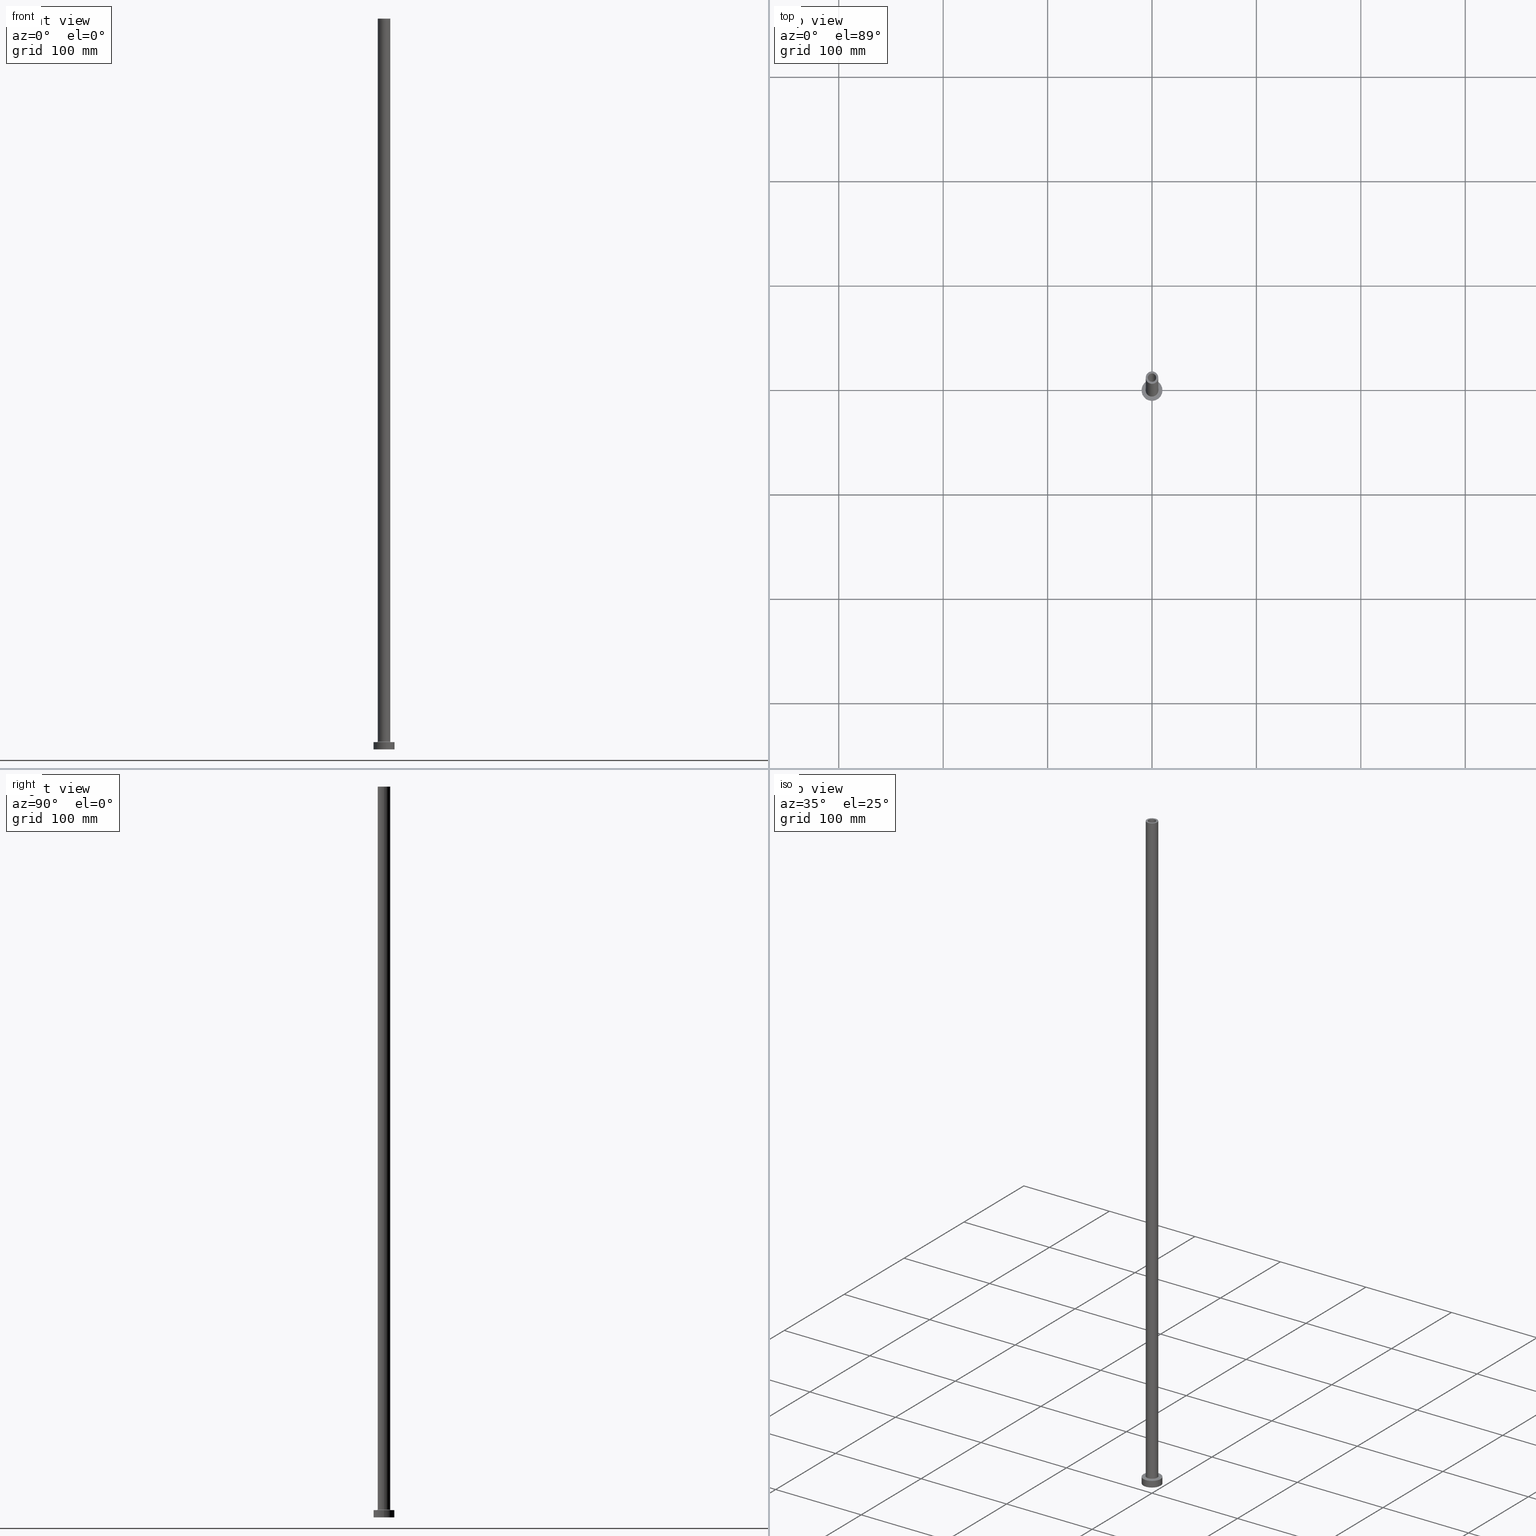
[diagram: canonical four-view strip — front | top / right | iso, engineering-drawing reading convention]
A machine part, canonical four-view strip (front | top / right | iso — engineering-drawing reading convention). The complete STEP part file that produces these views, byte-faithful:
ISO-10303-21;
HEADER;
FILE_DESCRIPTION (( 'STEP AP203' ),
    '1' );
FILE_NAME ('4488.STEP',
    '2023-02-13T12:42:28',
    ( '' ),
    ( '' ),
    'SwSTEP 2.0',
    'SolidWorks 2019',
    '' );
FILE_SCHEMA (( 'CONFIG_CONTROL_DESIGN' ));
ENDSEC;

DATA;
#1 = DIRECTION ( 'NONE',  ( 1.000000000000000000, 0.000000000000000000, 0.000000000000000000 ) ) ;
#2 = ORIENTED_EDGE ( 'NONE', *, *, #297, .T. ) ;
#3 = CARTESIAN_POINT ( 'NONE',  ( 0.000000000000000000, 0.000000000000000000, 7.700000000000040146 ) ) ;
#4 = ADVANCED_FACE ( 'NONE', ( #446, #378 ), #441, .F. ) ;
#5 = ORIENTED_EDGE ( 'NONE', *, *, #283, .F. ) ;
#6 = CALENDAR_DATE ( 2023, 13, 2 ) ;
#7 = ORIENTED_EDGE ( 'NONE', *, *, #365, .T. ) ;
#8 = DATE_AND_TIME ( #318, #333 ) ;
#9 = MECHANICAL_CONTEXT ( 'NONE', #362, 'mechanical' ) ;
#10 = LINE ( 'NONE', #39, #45 ) ;
#11 = CC_DESIGN_DATE_AND_TIME_ASSIGNMENT ( #35, #148, ( #332 ) ) ;
#12 = DIRECTION ( 'NONE',  ( -1.000000000000000000, 0.000000000000000000, 0.000000000000000000 ) ) ;
#13 = VERTEX_POINT ( 'NONE', #20 ) ;
#14 = DIRECTION ( 'NONE',  ( 1.000000000000000000, 0.000000000000000000, -0.000000000000000000 ) ) ;
#15 = CC_DESIGN_APPROVAL ( #428, ( #37 ) ) ;
#16 = CARTESIAN_POINT ( 'NONE',  ( 0.000000000000000000, 0.000000000000000000, 0.000000000000000000 ) ) ;
#17 = VERTEX_POINT ( 'NONE', #375 ) ;
#18 = EDGE_LOOP ( 'NONE', ( #58, #172 ) ) ;
#19 = DIRECTION ( 'NONE',  ( 0.000000000000000000, 0.000000000000000000, 1.000000000000000000 ) ) ;
#20 = CARTESIAN_POINT ( 'NONE',  ( 10.00000000000000000, 1.224646799147353256E-15, 7.000000000000000000 ) ) ;
#21 = AXIS2_PLACEMENT_3D ( 'NONE', #140, #306, #347 ) ;
#22 = AXIS2_PLACEMENT_3D ( 'NONE', #103, #445, #29 ) ;
#23 = EDGE_LOOP ( 'NONE', ( #317, #44, #7, #84 ) ) ;
#24 = CC_DESIGN_PERSON_AND_ORGANIZATION_ASSIGNMENT ( #311, #74, ( #332 ) ) ;
#25 = DIRECTION ( 'NONE',  ( 1.000000000000000000, 0.000000000000000000, 0.000000000000000000 ) ) ;
#26 = CIRCLE ( 'NONE', #87, 6.700000000000001066 ) ;
#27 = CYLINDRICAL_SURFACE ( 'NONE', #193, 6.000000000000000888 ) ;
#28 = CARTESIAN_POINT ( 'NONE',  ( 6.000000000000000888, 7.347880794884120722E-16, 700.0000000000000000 ) ) ;
#29 = DIRECTION ( 'NONE',  ( 0.000000000000000000, 0.000000000000000000, -1.000000000000000000 ) ) ;
#30 = AXIS2_PLACEMENT_3D ( 'NONE', #242, #65, #272 ) ;
#31 = LINE ( 'NONE', #458, #106 ) ;
#32 = FACE_BOUND ( 'NONE', #430, .T. ) ;
#33 = EDGE_CURVE ( 'NONE', #395, #423, #130, .T. ) ;
#34 = LINE ( 'NONE', #28, #425 ) ;
#35 = DATE_AND_TIME ( #6, #236 ) ;
#36 = CARTESIAN_POINT ( 'NONE',  ( 0.000000000000000000, 0.000000000000000000, 700.0000000000000000 ) ) ;
#37 = PRODUCT_DEFINITION_FORMATION_WITH_SPECIFIED_SOURCE ( 'LIBOVOLN�', '', #261, .NOT_KNOWN. ) ;
#38 = APPROVAL ( #357, 'NEUR�EN�' ) ;
#39 = CARTESIAN_POINT ( 'NONE',  ( 10.00000000000000000, 1.224646799147353256E-15, 7.000000000000000000 ) ) ;
#40 = ORIENTED_EDGE ( 'NONE', *, *, #191, .T. ) ;
#41 = CIRCLE ( 'NONE', #57, 6.000000000000000888 ) ;
#42 = ORIENTED_EDGE ( 'NONE', *, *, #54, .F. ) ;
#43 = DATE_AND_TIME ( #117, #107 ) ;
#44 = ORIENTED_EDGE ( 'NONE', *, *, #396, .T. ) ;
#45 = VECTOR ( 'NONE', #209, 1000.000000000000000 ) ;
#46 = AXIS2_PLACEMENT_3D ( 'NONE', #129, #226, #94 ) ;
#47 = SECURITY_CLASSIFICATION_LEVEL ( 'unclassified' ) ;
#48 = PRODUCT_DEFINITION_SHAPE ( 'NONE', 'NONE',  #332 ) ;
#49 = CARTESIAN_POINT ( 'NONE',  ( 0.000000000000000000, 0.000000000000000000, 0.000000000000000000 ) ) ;
#50 = ORIENTED_EDGE ( 'NONE', *, *, #297, .F. ) ;
#51 = ORIENTED_EDGE ( 'NONE', *, *, #411, .T. ) ;
#52 = DIRECTION ( 'NONE',  ( 0.000000000000000000, 0.000000000000000000, 1.000000000000000000 ) ) ;
#53 = AXIS2_PLACEMENT_3D ( 'NONE', #374, #52, #264 ) ;
#54 = EDGE_CURVE ( 'NONE', #145, #253, #360, .T. ) ;
#55 = DIRECTION ( 'NONE',  ( 1.000000000000000000, 0.000000000000000000, 0.000000000000000000 ) ) ;
#56 = ORIENTED_EDGE ( 'NONE', *, *, #168, .T. ) ;
#57 = AXIS2_PLACEMENT_3D ( 'NONE', #343, #139, #204 ) ;
#58 = ORIENTED_EDGE ( 'NONE', *, *, #380, .T. ) ;
#59 = DIRECTION ( 'NONE',  ( 0.000000000000000000, 0.000000000000000000, 1.000000000000000000 ) ) ;
#60 = MANIFOLD_SOLID_BREP ( 'Odebrat vysunut�m4', #447 ) ;
#61 = DIRECTION ( 'NONE',  ( 0.000000000000000000, 0.000000000000000000, 1.000000000000000000 ) ) ;
#62 = APPROVAL ( #434, 'NEUR�EN�' ) ;
#63 = AXIS2_PLACEMENT_3D ( 'NONE', #36, #189, #426 ) ;
#64 = DIRECTION ( 'NONE',  ( 1.000000000000000000, 0.000000000000000000, 0.000000000000000000 ) ) ;
#65 = DIRECTION ( 'NONE',  ( 0.000000000000000000, 0.000000000000000000, 1.000000000000000000 ) ) ;
#66 = CARTESIAN_POINT ( 'NONE',  ( -6.000000000000000888, 0.000000000000000000, 700.0000000000000000 ) ) ;
#67 = FACE_OUTER_BOUND ( 'NONE', #322, .T. ) ;
#68 = DIRECTION ( 'NONE',  ( -1.000000000000000000, 0.000000000000000000, 0.000000000000000000 ) ) ;
#69 = AXIS2_PLACEMENT_3D ( 'NONE', #305, #104, #239 ) ;
#70 = DIRECTION ( 'NONE',  ( -0.000000000000000000, -0.000000000000000000, -1.000000000000000000 ) ) ;
#71 = ORIENTED_EDGE ( 'NONE', *, *, #315, .F. ) ;
#72 = CARTESIAN_POINT ( 'NONE',  ( 6.700000000000001066, 0.000000000000000000, 7.000000000000020428 ) ) ;
#73 = DIRECTION ( 'NONE',  ( 0.000000000000000000, 0.000000000000000000, -1.000000000000000000 ) ) ;
#74 = PERSON_AND_ORGANIZATION_ROLE ( 'creator' ) ;
#75 = CC_DESIGN_PERSON_AND_ORGANIZATION_ASSIGNMENT ( #81, #154, ( #275 ) ) ;
#76 = LINE ( 'NONE', #252, #442 ) ;
#77 = AXIS2_PLACEMENT_3D ( 'NONE', #165, #302, #99 ) ;
#78 = EDGE_LOOP ( 'NONE', ( #95, #366, #310, #51 ) ) ;
#79 = DIRECTION ( 'NONE',  ( 0.000000000000000000, 0.000000000000000000, 1.000000000000000000 ) ) ;
#80 = VERTEX_POINT ( 'NONE', #336 ) ;
#81 = PERSON_AND_ORGANIZATION ( #114, #85 ) ;
#82 = CARTESIAN_POINT ( 'NONE',  ( -4.000000000000000000, 0.000000000000000000, 654.9999999999998863 ) ) ;
#83 = EDGE_LOOP ( 'NONE', ( #355, #228, #190, #263 ) ) ;
#84 = ORIENTED_EDGE ( 'NONE', *, *, #404, .F. ) ;
#85 = ORGANIZATION ( 'NEUR�EN�', 'NEUR�EN�', '' ) ;
#86 =( GEOMETRIC_REPRESENTATION_CONTEXT ( 3 ) GLOBAL_UNCERTAINTY_ASSIGNED_CONTEXT ( ( #118 ) ) GLOBAL_UNIT_ASSIGNED_CONTEXT ( ( #203, #454, #452 ) ) REPRESENTATION_CONTEXT ( 'NONE', 'WORKASPACE' ) );
#87 = AXIS2_PLACEMENT_3D ( 'NONE', #388, #174, #100 ) ;
#88 = DIRECTION ( 'NONE',  ( 1.000000000000000000, 0.000000000000000000, 0.000000000000000000 ) ) ;
#89 = ORIENTED_EDGE ( 'NONE', *, *, #271, .T. ) ;
#90 = CC_DESIGN_PERSON_AND_ORGANIZATION_ASSIGNMENT ( #314, #293, ( #37 ) ) ;
#91 = DIRECTION ( 'NONE',  ( 0.000000000000000000, 0.000000000000000000, 1.000000000000000000 ) ) ;
#92 = DIRECTION ( 'NONE',  ( 1.000000000000000000, 0.000000000000000000, 0.000000000000000000 ) ) ;
#93 = VECTOR ( 'NONE', #339, 1000.000000000000000 ) ;
#94 = DIRECTION ( 'NONE',  ( 1.000000000000000000, 0.000000000000000000, 0.000000000000000000 ) ) ;
#95 = ORIENTED_EDGE ( 'NONE', *, *, #163, .F. ) ;
#96 = CARTESIAN_POINT ( 'NONE',  ( 0.000000000000000000, 0.000000000000000000, 7.000000000000000000 ) ) ;
#97 = CC_DESIGN_PERSON_AND_ORGANIZATION_ASSIGNMENT ( #254, #215, ( #261 ) ) ;
#98 = CARTESIAN_POINT ( 'NONE',  ( 0.000000000000000000, 0.000000000000000000, 7.700000000000040146 ) ) ;
#99 = DIRECTION ( 'NONE',  ( 1.000000000000000000, 0.000000000000000000, 0.000000000000000000 ) ) ;
#100 = DIRECTION ( 'NONE',  ( 1.000000000000000000, 0.000000000000000000, 0.000000000000000000 ) ) ;
#101 = AXIS2_PLACEMENT_3D ( 'NONE', #96, #197, #436 ) ;
#102 = LINE ( 'NONE', #384, #308 ) ;
#103 = CARTESIAN_POINT ( 'NONE',  ( 6.700000000000001066, 0.000000000000000000, 7.700000000000040146 ) ) ;
#104 = DIRECTION ( 'NONE',  ( 0.000000000000000000, 0.000000000000000000, -1.000000000000000000 ) ) ;
#105 = CARTESIAN_POINT ( 'NONE',  ( 0.000000000000000000, 0.000000000000000000, 7.000000000000000000 ) ) ;
#106 = VECTOR ( 'NONE', #345, 1000.000000000000000 ) ;
#107 = LOCAL_TIME ( 13, 42, 28.00000000000000000, #286 ) ;
#108 = DIRECTION ( 'NONE',  ( 0.000000000000000000, 0.000000000000000000, 1.000000000000000000 ) ) ;
#109 = ORIENTED_EDGE ( 'NONE', *, *, #138, .T. ) ;
#110 = DATE_AND_TIME ( #351, #459 ) ;
#111 = EDGE_CURVE ( 'NONE', #13, #395, #245, .T. ) ;
#112 = EDGE_LOOP ( 'NONE', ( #50, #260 ) ) ;
#113 = CALENDAR_DATE ( 2023, 13, 2 ) ;
#114 = PERSON ( 'NEUR�EN�', 'NEUR�EN�', 'NEUR�EN�', ('NEUR�EN�'), ('NEUR�EN�'), ('NEUR�EN�') ) ;
#115 = ORIENTED_EDGE ( 'NONE', *, *, #353, .T. ) ;
#116 = CARTESIAN_POINT ( 'NONE',  ( -6.000000000000000888, 0.000000000000000000, 7.700000000000040146 ) ) ;
#117 = CALENDAR_DATE ( 2023, 13, 2 ) ;
#118 = UNCERTAINTY_MEASURE_WITH_UNIT (LENGTH_MEASURE( 1.000000000000000082E-05 ), #203, 'distance_accuracy_value', 'NONE');
#119 = ORIENTED_EDGE ( 'NONE', *, *, #156, .T. ) ;
#120 = CIRCLE ( 'NONE', #379, 0.7000000000000000666 ) ;
#121 = ADVANCED_FACE ( 'NONE', ( #387 ), #417, .F. ) ;
#122 = CYLINDRICAL_SURFACE ( 'NONE', #63, 6.000000000000000888 ) ;
#123 = ORIENTED_EDGE ( 'NONE', *, *, #278, .T. ) ;
#124 = CYLINDRICAL_SURFACE ( 'NONE', #408, 4.000000000000000000 ) ;
#125 = TOROIDAL_SURFACE ( 'NONE', #30, 6.700000000000001066, 0.6999999999999999556 ) ;
#126 = DIRECTION ( 'NONE',  ( 0.000000000000000000, 0.000000000000000000, 1.000000000000000000 ) ) ;
#127 = EDGE_CURVE ( 'NONE', #195, #290, #303, .T. ) ;
#128 = ORIENTED_EDGE ( 'NONE', *, *, #127, .T. ) ;
#129 = CARTESIAN_POINT ( 'NONE',  ( 0.000000000000000000, 0.000000000000000000, 700.0000000000000000 ) ) ;
#130 = LINE ( 'NONE', #161, #269 ) ;
#131 = CARTESIAN_POINT ( 'NONE',  ( -10.00000000000000000, 0.000000000000000000, 7.000000000000000000 ) ) ;
#132 = DIRECTION ( 'NONE',  ( 0.000000000000000000, 0.000000000000000000, 1.000000000000000000 ) ) ;
#133 = DIRECTION ( 'NONE',  ( -0.000000000000000000, -0.000000000000000000, -1.000000000000000000 ) ) ;
#134 = DIRECTION ( 'NONE',  ( 0.000000000000000000, 0.000000000000000000, 1.000000000000000000 ) ) ;
#135 = APPROVAL_PERSON_ORGANIZATION ( #249, #62, #370 ) ;
#136 = CARTESIAN_POINT ( 'NONE',  ( -4.150000000000000355, 0.000000000000000000, 0.000000000000000000 ) ) ;
#137 = CYLINDRICAL_SURFACE ( 'NONE', #69, 4.150000000000000355 ) ;
#138 = EDGE_CURVE ( 'NONE', #225, #80, #41, .T. ) ;
#139 = DIRECTION ( 'NONE',  ( 0.000000000000000000, 0.000000000000000000, 1.000000000000000000 ) ) ;
#140 = CARTESIAN_POINT ( 'NONE',  ( 0.000000000000000000, 0.000000000000000000, 700.0000000000000000 ) ) ;
#141 = EDGE_CURVE ( 'NONE', #223, #267, #102, .T. ) ;
#142 = CIRCLE ( 'NONE', #300, 4.150000000000000355 ) ;
#143 = DIRECTION ( 'NONE',  ( 0.000000000000000000, 0.000000000000000000, 1.000000000000000000 ) ) ;
#144 = EDGE_LOOP ( 'NONE', ( #71, #150 ) ) ;
#145 = VERTEX_POINT ( 'NONE', #352 ) ;
#146 = PERSON_AND_ORGANIZATION_ROLE ( 'creator' ) ;
#147 = EDGE_LOOP ( 'NONE', ( #198, #128, #40, #2 ) ) ;
#148 = DATE_TIME_ROLE ( 'creation_date' ) ;
#149 = CIRCLE ( 'NONE', #274, 4.000000000000000000 ) ;
#150 = ORIENTED_EDGE ( 'NONE', *, *, #271, .F. ) ;
#151 = DATE_TIME_ROLE ( 'classification_date' ) ;
#152 = CARTESIAN_POINT ( 'NONE',  ( -4.150000000000000355, 0.000000000000000000, 654.9999999999998863 ) ) ;
#153 = ORIENTED_EDGE ( 'NONE', *, *, #33, .T. ) ;
#154 = PERSON_AND_ORGANIZATION_ROLE ( 'classification_officer' ) ;
#155 = EDGE_LOOP ( 'NONE', ( #56, #207 ) ) ;
#156 = EDGE_CURVE ( 'NONE', #253, #390, #120, .T. ) ;
#157 = FACE_BOUND ( 'NONE', #155, .T. ) ;
#158 = AXIS2_PLACEMENT_3D ( 'NONE', #16, #19, #55 ) ;
#159 = EDGE_LOOP ( 'NONE', ( #115, #123, #183, #328 ) ) ;
#160 = EDGE_LOOP ( 'NONE', ( #292, #320, #89, #180 ) ) ;
#161 = CARTESIAN_POINT ( 'NONE',  ( -10.00000000000000000, 0.000000000000000000, 7.000000000000000000 ) ) ;
#162 = CIRCLE ( 'NONE', #186, 10.00000000000000000 ) ;
#163 = EDGE_CURVE ( 'NONE', #80, #145, #34, .T. ) ;
#164 = CIRCLE ( 'NONE', #356, 4.150000000000000355 ) ;
#165 = CARTESIAN_POINT ( 'NONE',  ( 0.000000000000000000, 0.000000000000000000, 0.000000000000000000 ) ) ;
#166 = ORIENTED_EDGE ( 'NONE', *, *, #196, .T. ) ;
#167 = FACE_OUTER_BOUND ( 'NONE', #147, .T. ) ;
#168 = EDGE_CURVE ( 'NONE', #424, #390, #26, .T. ) ;
#169 = DIRECTION ( 'NONE',  ( -1.000000000000000000, 0.000000000000000000, 0.000000000000000000 ) ) ;
#170 = CARTESIAN_POINT ( 'NONE',  ( 4.150000000000000355, 5.082284216461515156E-16, 654.9999999999998863 ) ) ;
#171 = PLANE ( 'NONE',  #241 ) ;
#172 = ORIENTED_EDGE ( 'NONE', *, *, #404, .T. ) ;
#173 = EDGE_CURVE ( 'NONE', #395, #13, #344, .T. ) ;
#174 = DIRECTION ( 'NONE',  ( -0.000000000000000000, -0.000000000000000000, -1.000000000000000000 ) ) ;
#175 = APPROVAL_DATE_TIME ( #43, #62 ) ;
#176 = AXIS2_PLACEMENT_3D ( 'NONE', #386, #134, #25 ) ;
#177 = FACE_BOUND ( 'NONE', #18, .T. ) ;
#178 = COORDINATED_UNIVERSAL_TIME_OFFSET ( 1, 0, .AHEAD. ) ;
#179 = FACE_OUTER_BOUND ( 'NONE', #78, .T. ) ;
#180 = ORIENTED_EDGE ( 'NONE', *, *, #33, .F. ) ;
#181 = DIRECTION ( 'NONE',  ( 0.000000000000000000, 0.000000000000000000, 1.000000000000000000 ) ) ;
#182 = ADVANCED_FACE ( 'NONE', ( #451 ), #455, .F. ) ;
#183 = ORIENTED_EDGE ( 'NONE', *, *, #327, .T. ) ;
#184 = APPLICATION_CONTEXT ( 'configuration controlled 3d designs of mechanical parts and assemblies' ) ;
#185 = APPROVAL_DATE_TIME ( #364, #428 ) ;
#186 = AXIS2_PLACEMENT_3D ( 'NONE', #49, #325, #321 ) ;
#187 = CIRCLE ( 'NONE', #342, 6.000000000000000888 ) ;
#188 = ORIENTED_EDGE ( 'NONE', *, *, #54, .T. ) ;
#189 = DIRECTION ( 'NONE',  ( -0.000000000000000000, -0.000000000000000000, -1.000000000000000000 ) ) ;
#190 = ORIENTED_EDGE ( 'NONE', *, *, #380, .F. ) ;
#191 = EDGE_CURVE ( 'NONE', #290, #433, #31, .T. ) ;
#192 = LINE ( 'NONE', #440, #93 ) ;
#193 = AXIS2_PLACEMENT_3D ( 'NONE', #238, #201, #420 ) ;
#194 = CARTESIAN_POINT ( 'NONE',  ( 0.000000000000000000, 0.000000000000000000, 0.000000000000000000 ) ) ;
#195 = VERTEX_POINT ( 'NONE', #170 ) ;
#196 = EDGE_CURVE ( 'NONE', #80, #225, #437, .T. ) ;
#197 = DIRECTION ( 'NONE',  ( 0.000000000000000000, 0.000000000000000000, 1.000000000000000000 ) ) ;
#198 = ORIENTED_EDGE ( 'NONE', *, *, #278, .F. ) ;
#199 = CARTESIAN_POINT ( 'NONE',  ( 4.000000000000000000, 4.898587196589412829E-16, 700.0000000000000000 ) ) ;
#200 = AXIS2_PLACEMENT_3D ( 'NONE', #299, #132, #376 ) ;
#201 = DIRECTION ( 'NONE',  ( -0.000000000000000000, -0.000000000000000000, -1.000000000000000000 ) ) ;
#202 = CARTESIAN_POINT ( 'NONE',  ( 0.000000000000000000, 0.000000000000000000, 666.7379725676966018 ) ) ;
#203 =( LENGTH_UNIT ( ) NAMED_UNIT ( * ) SI_UNIT ( .MILLI., .METRE. ) );
#204 = DIRECTION ( 'NONE',  ( 1.000000000000000000, 0.000000000000000000, 0.000000000000000000 ) ) ;
#205 = CC_DESIGN_APPROVAL ( #62, ( #275 ) ) ;
#206 = DIRECTION ( 'NONE',  ( -0.000000000000000000, -0.000000000000000000, -1.000000000000000000 ) ) ;
#207 = ORIENTED_EDGE ( 'NONE', *, *, #235, .T. ) ;
#208 = DIRECTION ( 'NONE',  ( 0.000000000000000000, 0.000000000000000000, -1.000000000000000000 ) ) ;
#209 = DIRECTION ( 'NONE',  ( -0.000000000000000000, -0.000000000000000000, -1.000000000000000000 ) ) ;
#210 = EDGE_LOOP ( 'NONE', ( #369, #406, #188, #326 ) ) ;
#211 = LOCAL_TIME ( 13, 42, 28.00000000000000000, #316 ) ;
#212 = PERSON_AND_ORGANIZATION ( #114, #85 ) ;
#213 = PLANE ( 'NONE',  #313 ) ;
#214 = EDGE_CURVE ( 'NONE', #298, #223, #149, .T. ) ;
#215 = PERSON_AND_ORGANIZATION_ROLE ( 'design_owner' ) ;
#216 = AXIS2_PLACEMENT_3D ( 'NONE', #202, #208, #68 ) ;
#217 = ORIENTED_EDGE ( 'NONE', *, *, #315, .T. ) ;
#218 = APPROVAL_ROLE ( '' ) ;
#219 = DIRECTION ( 'NONE',  ( -0.000000000000000000, -0.000000000000000000, -1.000000000000000000 ) ) ;
#220 = VERTEX_POINT ( 'NONE', #450 ) ;
#221 = TOROIDAL_SURFACE ( 'NONE', #251, 6.700000000000001066, 0.6999999999999999556 ) ;
#222 = ADVANCED_FACE ( 'NONE', ( #312 ), #277, .T. ) ;
#223 = VERTEX_POINT ( 'NONE', #199 ) ;
#224 = COORDINATED_UNIVERSAL_TIME_OFFSET ( 1, 0, .AHEAD. ) ;
#225 = VERTEX_POINT ( 'NONE', #66 ) ;
#226 = DIRECTION ( 'NONE',  ( 0.000000000000000000, 0.000000000000000000, 1.000000000000000000 ) ) ;
#227 = CARTESIAN_POINT ( 'NONE',  ( 0.000000000000000000, 0.000000000000000000, 0.000000000000000000 ) ) ;
#228 = ORIENTED_EDGE ( 'NONE', *, *, #141, .T. ) ;
#229 = CIRCLE ( 'NONE', #46, 4.000000000000000000 ) ;
#230 = DIRECTION ( 'NONE',  ( 1.000000000000000000, 0.000000000000000000, 0.000000000000000000 ) ) ;
#231 = DIRECTION ( 'NONE',  ( 1.000000000000000000, 0.000000000000000000, 0.000000000000000000 ) ) ;
#232 = FACE_OUTER_BOUND ( 'NONE', #210, .T. ) ;
#233 = ADVANCED_BREP_SHAPE_REPRESENTATION ( '4488', ( #60, #77 ), #86 ) ;
#234 = AXIS2_PLACEMENT_3D ( 'NONE', #304, #108, #276 ) ;
#235 = EDGE_CURVE ( 'NONE', #390, #424, #367, .T. ) ;
#236 = LOCAL_TIME ( 13, 42, 28.00000000000000000, #319 ) ;
#237 = CARTESIAN_POINT ( 'NONE',  ( 0.000000000000000000, 0.000000000000000000, 7.000000000000000000 ) ) ;
#238 = CARTESIAN_POINT ( 'NONE',  ( 0.000000000000000000, 0.000000000000000000, 700.0000000000000000 ) ) ;
#239 = DIRECTION ( 'NONE',  ( -1.000000000000000000, 0.000000000000000000, 0.000000000000000000 ) ) ;
#240 = CARTESIAN_POINT ( 'NONE',  ( 0.000000000000000000, 0.000000000000000000, 654.9999999999998863 ) ) ;
#241 = AXIS2_PLACEMENT_3D ( 'NONE', #309, #181, #354 ) ;
#242 = CARTESIAN_POINT ( 'NONE',  ( 0.000000000000000000, 0.000000000000000000, 7.700000000000040146 ) ) ;
#243 = ADVANCED_FACE ( 'NONE', ( #167 ), #137, .F. ) ;
#244 = FACE_OUTER_BOUND ( 'NONE', #412, .T. ) ;
#245 = CIRCLE ( 'NONE', #200, 10.00000000000000000 ) ;
#246 = FACE_OUTER_BOUND ( 'NONE', #258, .T. ) ;
#247 = ORIENTED_EDGE ( 'NONE', *, *, #435, .T. ) ;
#248 = ADVANCED_FACE ( 'NONE', ( #32, #244 ), #171, .T. ) ;
#249 = PERSON_AND_ORGANIZATION ( #114, #85 ) ;
#250 = AXIS2_PLACEMENT_3D ( 'NONE', #237, #206, #349 ) ;
#251 = AXIS2_PLACEMENT_3D ( 'NONE', #3, #79, #1 ) ;
#252 = CARTESIAN_POINT ( 'NONE',  ( 4.150000000000000355, 5.082284216461515156E-16, 666.7379725676966018 ) ) ;
#253 = VERTEX_POINT ( 'NONE', #116 ) ;
#254 = PERSON_AND_ORGANIZATION ( #114, #85 ) ;
#255 = AXIS2_PLACEMENT_3D ( 'NONE', #227, #61, #341 ) ;
#256 = VERTEX_POINT ( 'NONE', #82 ) ;
#257 = ADVANCED_FACE ( 'NONE', ( #289 ), #397, .T. ) ;
#258 = EDGE_LOOP ( 'NONE', ( #398, #407 ) ) ;
#259 = CARTESIAN_POINT ( 'NONE',  ( 0.000000000000000000, 0.000000000000000000, 700.0000000000000000 ) ) ;
#260 = ORIENTED_EDGE ( 'NONE', *, *, #327, .F. ) ;
#261 = PRODUCT ( '4488', '4488', '', ( #9 ) ) ;
#262 = DIRECTION ( 'NONE',  ( -1.000000000000000000, 0.000000000000000000, 0.000000000000000000 ) ) ;
#263 = ORIENTED_EDGE ( 'NONE', *, *, #365, .F. ) ;
#264 = DIRECTION ( 'NONE',  ( 1.000000000000000000, 0.000000000000000000, 0.000000000000000000 ) ) ;
#265 = ORIENTED_EDGE ( 'NONE', *, *, #235, .F. ) ;
#266 = CARTESIAN_POINT ( 'NONE',  ( 0.000000000000000000, 0.000000000000000000, 7.700000000000040146 ) ) ;
#267 = VERTEX_POINT ( 'NONE', #282 ) ;
#268 = AXIS2_PLACEMENT_3D ( 'NONE', #403, #126, #88 ) ;
#269 = VECTOR ( 'NONE', #133, 1000.000000000000000 ) ;
#270 = CARTESIAN_POINT ( 'NONE',  ( -10.00000000000000000, 0.000000000000000000, 0.000000000000000000 ) ) ;
#271 = EDGE_CURVE ( 'NONE', #220, #423, #162, .T. ) ;
#272 = DIRECTION ( 'NONE',  ( 1.000000000000000000, 0.000000000000000000, 0.000000000000000000 ) ) ;
#273 = DIRECTION ( 'NONE',  ( 1.000000000000000000, 0.000000000000000000, 0.000000000000000000 ) ) ;
#274 = AXIS2_PLACEMENT_3D ( 'NONE', #453, #383, #273 ) ;
#275 = SECURITY_CLASSIFICATION ( '', '', #47 ) ;
#276 = DIRECTION ( 'NONE',  ( 1.000000000000000000, 0.000000000000000000, 0.000000000000000000 ) ) ;
#277 = CYLINDRICAL_SURFACE ( 'NONE', #331, 10.00000000000000000 ) ;
#278 = EDGE_CURVE ( 'NONE', #195, #17, #76, .T. ) ;
#279 = DIRECTION ( 'NONE',  ( 1.224646799147353207E-16, 1.000000000000000000, -0.000000000000000000 ) ) ;
#280 = CARTESIAN_POINT ( 'NONE',  ( -4.000000000000000000, 0.000000000000000000, 700.0000000000000000 ) ) ;
#281 = APPROVAL_DATE_TIME ( #110, #38 ) ;
#282 = CARTESIAN_POINT ( 'NONE',  ( 4.000000000000000000, 4.898587196589412829E-16, 654.9999999999998863 ) ) ;
#283 = EDGE_CURVE ( 'NONE', #13, #220, #10, .T. ) ;
#284 = ORIENTED_EDGE ( 'NONE', *, *, #435, .F. ) ;
#285 = ORIENTED_EDGE ( 'NONE', *, *, #173, .F. ) ;
#286 = COORDINATED_UNIVERSAL_TIME_OFFSET ( 1, 0, .AHEAD. ) ;
#287 = CC_DESIGN_APPROVAL ( #38, ( #332 ) ) ;
#288 = APPROVAL_STATUS ( 'not_yet_approved' ) ;
#289 = FACE_OUTER_BOUND ( 'NONE', #392, .T. ) ;
#290 = VERTEX_POINT ( 'NONE', #152 ) ;
#291 = DIRECTION ( 'NONE',  ( -0.000000000000000000, -0.000000000000000000, -1.000000000000000000 ) ) ;
#292 = ORIENTED_EDGE ( 'NONE', *, *, #111, .F. ) ;
#293 = PERSON_AND_ORGANIZATION_ROLE ( 'design_supplier' ) ;
#294 = ADVANCED_FACE ( 'NONE', ( #179 ), #122, .T. ) ;
#295 = FACE_OUTER_BOUND ( 'NONE', #400, .T. ) ;
#296 = CARTESIAN_POINT ( 'NONE',  ( 0.000000000000000000, 0.000000000000000000, 654.9999999999998863 ) ) ;
#297 = EDGE_CURVE ( 'NONE', #433, #17, #164, .T. ) ;
#298 = VERTEX_POINT ( 'NONE', #280 ) ;
#299 = CARTESIAN_POINT ( 'NONE',  ( 0.000000000000000000, 0.000000000000000000, 7.000000000000000000 ) ) ;
#300 = AXIS2_PLACEMENT_3D ( 'NONE', #194, #329, #231 ) ;
#301 = ADVANCED_FACE ( 'NONE', ( #399 ), #221, .F. ) ;
#302 = DIRECTION ( 'NONE',  ( 0.000000000000000000, 0.000000000000000000, 1.000000000000000000 ) ) ;
#303 = CIRCLE ( 'NONE', #350, 4.150000000000000355 ) ;
#304 = CARTESIAN_POINT ( 'NONE',  ( 0.000000000000000000, 0.000000000000000000, 700.0000000000000000 ) ) ;
#305 = CARTESIAN_POINT ( 'NONE',  ( 0.000000000000000000, 0.000000000000000000, 666.7379725676966018 ) ) ;
#306 = DIRECTION ( 'NONE',  ( 0.000000000000000000, 0.000000000000000000, -1.000000000000000000 ) ) ;
#307 = ADVANCED_FACE ( 'NONE', ( #177, #246 ), #213, .F. ) ;
#308 = VECTOR ( 'NONE', #73, 1000.000000000000000 ) ;
#309 = CARTESIAN_POINT ( 'NONE',  ( 0.000000000000000000, 0.000000000000000000, 700.0000000000000000 ) ) ;
#310 = ORIENTED_EDGE ( 'NONE', *, *, #416, .T. ) ;
#311 = PERSON_AND_ORGANIZATION ( #114, #85 ) ;
#312 = FACE_OUTER_BOUND ( 'NONE', #160, .T. ) ;
#313 = AXIS2_PLACEMENT_3D ( 'NONE', #358, #59, #14 ) ;
#314 = PERSON_AND_ORGANIZATION ( #114, #85 ) ;
#315 = EDGE_CURVE ( 'NONE', #423, #220, #422, .T. ) ;
#316 = COORDINATED_UNIVERSAL_TIME_OFFSET ( 1, 0, .AHEAD. ) ;
#317 = ORIENTED_EDGE ( 'NONE', *, *, #141, .F. ) ;
#318 = CALENDAR_DATE ( 2023, 13, 2 ) ;
#319 = COORDINATED_UNIVERSAL_TIME_OFFSET ( 1, 0, .AHEAD. ) ;
#320 = ORIENTED_EDGE ( 'NONE', *, *, #283, .T. ) ;
#321 = DIRECTION ( 'NONE',  ( 1.000000000000000000, 0.000000000000000000, 0.000000000000000000 ) ) ;
#322 = EDGE_LOOP ( 'NONE', ( #381, #119, #359, #284 ) ) ;
#323 = AXIS2_PLACEMENT_3D ( 'NONE', #429, #219, #12 ) ;
#324 = PERSON_AND_ORGANIZATION ( #114, #85 ) ;
#325 = DIRECTION ( 'NONE',  ( 0.000000000000000000, 0.000000000000000000, 1.000000000000000000 ) ) ;
#326 = ORIENTED_EDGE ( 'NONE', *, *, #416, .F. ) ;
#327 = EDGE_CURVE ( 'NONE', #17, #433, #142, .T. ) ;
#328 = ORIENTED_EDGE ( 'NONE', *, *, #191, .F. ) ;
#329 = DIRECTION ( 'NONE',  ( -0.000000000000000000, -0.000000000000000000, -1.000000000000000000 ) ) ;
#330 = DIRECTION ( 'NONE',  ( 0.000000000000000000, 0.000000000000000000, 1.000000000000000000 ) ) ;
#331 = AXIS2_PLACEMENT_3D ( 'NONE', #105, #415, #169 ) ;
#332 = PRODUCT_DEFINITION ( 'NEZN�M�', '', #37, #402 ) ;
#333 = LOCAL_TIME ( 13, 42, 28.00000000000000000, #224 ) ;
#334 = ORIENTED_EDGE ( 'NONE', *, *, #214, .F. ) ;
#335 = FACE_OUTER_BOUND ( 'NONE', #83, .T. ) ;
#336 = CARTESIAN_POINT ( 'NONE',  ( 6.000000000000000888, 7.347880794884120722E-16, 700.0000000000000000 ) ) ;
#337 = DIRECTION ( 'NONE',  ( 0.000000000000000000, 0.000000000000000000, -1.000000000000000000 ) ) ;
#338 = ADVANCED_FACE ( 'NONE', ( #157, #295 ), #439, .T. ) ;
#339 = DIRECTION ( 'NONE',  ( 0.000000000000000000, 0.000000000000000000, -1.000000000000000000 ) ) ;
#340 = CIRCLE ( 'NONE', #268, 4.000000000000000000 ) ;
#341 = DIRECTION ( 'NONE',  ( 1.000000000000000000, 0.000000000000000000, -0.000000000000000000 ) ) ;
#342 = AXIS2_PLACEMENT_3D ( 'NONE', #266, #409, #230 ) ;
#343 = CARTESIAN_POINT ( 'NONE',  ( 0.000000000000000000, 0.000000000000000000, 700.0000000000000000 ) ) ;
#344 = CIRCLE ( 'NONE', #176, 10.00000000000000000 ) ;
#345 = DIRECTION ( 'NONE',  ( 0.000000000000000000, 0.000000000000000000, -1.000000000000000000 ) ) ;
#346 = CARTESIAN_POINT ( 'NONE',  ( -6.000000000000000888, 0.000000000000000000, 700.0000000000000000 ) ) ;
#347 = DIRECTION ( 'NONE',  ( -1.000000000000000000, 0.000000000000000000, 0.000000000000000000 ) ) ;
#348 = APPROVAL_PERSON_ORGANIZATION ( #457, #428, #218 ) ;
#349 = DIRECTION ( 'NONE',  ( 1.000000000000000000, 0.000000000000000000, 0.000000000000000000 ) ) ;
#350 = AXIS2_PLACEMENT_3D ( 'NONE', #240, #143, #64 ) ;
#351 = CALENDAR_DATE ( 2023, 13, 2 ) ;
#352 = CARTESIAN_POINT ( 'NONE',  ( 6.000000000000000888, 7.347880794884120722E-16, 7.700000000000040146 ) ) ;
#353 = EDGE_CURVE ( 'NONE', #290, #195, #368, .T. ) ;
#354 = DIRECTION ( 'NONE',  ( 1.000000000000000000, 0.000000000000000000, -0.000000000000000000 ) ) ;
#355 = ORIENTED_EDGE ( 'NONE', *, *, #214, .T. ) ;
#356 = AXIS2_PLACEMENT_3D ( 'NONE', #394, #291, #432 ) ;
#357 = APPROVAL_STATUS ( 'not_yet_approved' ) ;
#358 = CARTESIAN_POINT ( 'NONE',  ( 0.000000000000000000, 0.000000000000000000, 654.9999999999998863 ) ) ;
#359 = ORIENTED_EDGE ( 'NONE', *, *, #168, .F. ) ;
#360 = CIRCLE ( 'NONE', #372, 6.000000000000000888 ) ;
#361 = APPROVAL_ROLE ( '' ) ;
#362 = APPLICATION_CONTEXT ( 'configuration controlled 3d designs of mechanical parts and assemblies' ) ;
#363 = ORIENTED_EDGE ( 'NONE', *, *, #156, .F. ) ;
#364 = DATE_AND_TIME ( #113, #211 ) ;
#365 = EDGE_CURVE ( 'NONE', #298, #256, #192, .T. ) ;
#366 = ORIENTED_EDGE ( 'NONE', *, *, #138, .F. ) ;
#367 = CIRCLE ( 'NONE', #250, 6.700000000000001066 ) ;
#368 = CIRCLE ( 'NONE', #382, 4.150000000000000355 ) ;
#369 = ORIENTED_EDGE ( 'NONE', *, *, #196, .F. ) ;
#370 = APPROVAL_ROLE ( '' ) ;
#371 = CARTESIAN_POINT ( 'NONE',  ( -6.700000000000001066, 8.205133554287267548E-16, 7.000000000000020428 ) ) ;
#372 = AXIS2_PLACEMENT_3D ( 'NONE', #98, #330, #92 ) ;
#373 = ADVANCED_FACE ( 'NONE', ( #335 ), #124, .F. ) ;
#374 = CARTESIAN_POINT ( 'NONE',  ( 0.000000000000000000, 0.000000000000000000, 654.9999999999998863 ) ) ;
#375 = CARTESIAN_POINT ( 'NONE',  ( 4.150000000000000355, 5.082284216461515156E-16, 0.000000000000000000 ) ) ;
#376 = DIRECTION ( 'NONE',  ( 1.000000000000000000, 0.000000000000000000, 0.000000000000000000 ) ) ;
#377 = LINE ( 'NONE', #346, #414 ) ;
#378 = FACE_OUTER_BOUND ( 'NONE', #144, .T. ) ;
#379 = AXIS2_PLACEMENT_3D ( 'NONE', #421, #279, #418 ) ;
#380 = EDGE_CURVE ( 'NONE', #256, #267, #340, .T. ) ;
#381 = ORIENTED_EDGE ( 'NONE', *, *, #411, .F. ) ;
#382 = AXIS2_PLACEMENT_3D ( 'NONE', #296, #91, #444 ) ;
#383 = DIRECTION ( 'NONE',  ( 0.000000000000000000, 0.000000000000000000, 1.000000000000000000 ) ) ;
#384 = CARTESIAN_POINT ( 'NONE',  ( 4.000000000000000000, 4.898587196589412829E-16, 700.0000000000000000 ) ) ;
#385 = PRODUCT_RELATED_PRODUCT_CATEGORY ( 'detail', '', ( #261 ) ) ;
#386 = CARTESIAN_POINT ( 'NONE',  ( 0.000000000000000000, 0.000000000000000000, 7.000000000000000000 ) ) ;
#387 = FACE_OUTER_BOUND ( 'NONE', #159, .T. ) ;
#388 = CARTESIAN_POINT ( 'NONE',  ( 0.000000000000000000, 0.000000000000000000, 7.000000000000000000 ) ) ;
#389 = CC_DESIGN_PERSON_AND_ORGANIZATION_ASSIGNMENT ( #324, #146, ( #37 ) ) ;
#390 = VERTEX_POINT ( 'NONE', #371 ) ;
#391 = DIRECTION ( 'NONE',  ( 0.000000000000000000, 0.000000000000000000, -1.000000000000000000 ) ) ;
#392 = EDGE_LOOP ( 'NONE', ( #5, #285, #153, #217 ) ) ;
#393 = CC_DESIGN_SECURITY_CLASSIFICATION ( #275, ( #37 ) ) ;
#394 = CARTESIAN_POINT ( 'NONE',  ( 0.000000000000000000, 0.000000000000000000, 0.000000000000000000 ) ) ;
#395 = VERTEX_POINT ( 'NONE', #131 ) ;
#396 = EDGE_CURVE ( 'NONE', #223, #298, #229, .T. ) ;
#397 = CYLINDRICAL_SURFACE ( 'NONE', #323, 10.00000000000000000 ) ;
#398 = ORIENTED_EDGE ( 'NONE', *, *, #353, .F. ) ;
#399 = FACE_OUTER_BOUND ( 'NONE', #460, .T. ) ;
#400 = EDGE_LOOP ( 'NONE', ( #427, #410 ) ) ;
#401 = CIRCLE ( 'NONE', #53, 4.000000000000000000 ) ;
#402 = DESIGN_CONTEXT ( 'detailed design', #184, 'design' ) ;
#403 = CARTESIAN_POINT ( 'NONE',  ( 0.000000000000000000, 0.000000000000000000, 654.9999999999998863 ) ) ;
#404 = EDGE_CURVE ( 'NONE', #267, #256, #401, .T. ) ;
#405 = ORIENTED_EDGE ( 'NONE', *, *, #396, .F. ) ;
#406 = ORIENTED_EDGE ( 'NONE', *, *, #163, .T. ) ;
#407 = ORIENTED_EDGE ( 'NONE', *, *, #127, .F. ) ;
#408 = AXIS2_PLACEMENT_3D ( 'NONE', #259, #337, #262 ) ;
#409 = DIRECTION ( 'NONE',  ( 0.000000000000000000, 0.000000000000000000, 1.000000000000000000 ) ) ;
#410 = ORIENTED_EDGE ( 'NONE', *, *, #111, .T. ) ;
#411 = EDGE_CURVE ( 'NONE', #253, #145, #187, .T. ) ;
#412 = EDGE_LOOP ( 'NONE', ( #109, #166 ) ) ;
#413 = APPLICATION_PROTOCOL_DEFINITION ( 'international standard', 'config_control_design', 1994, #362 ) ;
#414 = VECTOR ( 'NONE', #448, 1000.000000000000000 ) ;
#415 = DIRECTION ( 'NONE',  ( -0.000000000000000000, -0.000000000000000000, -1.000000000000000000 ) ) ;
#416 = EDGE_CURVE ( 'NONE', #225, #253, #377, .T. ) ;
#417 = CYLINDRICAL_SURFACE ( 'NONE', #216, 4.150000000000000355 ) ;
#418 = DIRECTION ( 'NONE',  ( -1.000000000000000000, 1.224646799147353454E-16, 0.000000000000000000 ) ) ;
#419 = ADVANCED_FACE ( 'NONE', ( #67 ), #125, .F. ) ;
#420 = DIRECTION ( 'NONE',  ( -1.000000000000000000, 0.000000000000000000, 0.000000000000000000 ) ) ;
#421 = CARTESIAN_POINT ( 'NONE',  ( -6.700000000000001066, 8.205133554287267548E-16, 7.700000000000040146 ) ) ;
#422 = CIRCLE ( 'NONE', #158, 10.00000000000000000 ) ;
#423 = VERTEX_POINT ( 'NONE', #270 ) ;
#424 = VERTEX_POINT ( 'NONE', #72 ) ;
#425 = VECTOR ( 'NONE', #70, 1000.000000000000000 ) ;
#426 = DIRECTION ( 'NONE',  ( -1.000000000000000000, 0.000000000000000000, 0.000000000000000000 ) ) ;
#427 = ORIENTED_EDGE ( 'NONE', *, *, #173, .T. ) ;
#428 = APPROVAL ( #288, 'NEUR�EN�' ) ;
#429 = CARTESIAN_POINT ( 'NONE',  ( 0.000000000000000000, 0.000000000000000000, 7.000000000000000000 ) ) ;
#430 = EDGE_LOOP ( 'NONE', ( #334, #405 ) ) ;
#431 = APPLICATION_PROTOCOL_DEFINITION ( 'international standard', 'config_control_design', 1994, #184 ) ;
#432 = DIRECTION ( 'NONE',  ( 1.000000000000000000, 0.000000000000000000, 0.000000000000000000 ) ) ;
#433 = VERTEX_POINT ( 'NONE', #136 ) ;
#434 = APPROVAL_STATUS ( 'not_yet_approved' ) ;
#435 = EDGE_CURVE ( 'NONE', #145, #424, #443, .T. ) ;
#436 = DIRECTION ( 'NONE',  ( 1.000000000000000000, 0.000000000000000000, -0.000000000000000000 ) ) ;
#437 = CIRCLE ( 'NONE', #234, 6.000000000000000888 ) ;
#438 = APPROVAL_PERSON_ORGANIZATION ( #212, #38, #361 ) ;
#439 = PLANE ( 'NONE',  #101 ) ;
#440 = CARTESIAN_POINT ( 'NONE',  ( -4.000000000000000000, 0.000000000000000000, 700.0000000000000000 ) ) ;
#441 = PLANE ( 'NONE',  #255 ) ;
#442 = VECTOR ( 'NONE', #391, 1000.000000000000000 ) ;
#443 = CIRCLE ( 'NONE', #22, 0.7000000000000000666 ) ;
#444 = DIRECTION ( 'NONE',  ( 1.000000000000000000, 0.000000000000000000, 0.000000000000000000 ) ) ;
#445 = DIRECTION ( 'NONE',  ( 0.000000000000000000, -1.000000000000000000, 0.000000000000000000 ) ) ;
#446 = FACE_BOUND ( 'NONE', #112, .T. ) ;
#447 = CLOSED_SHELL ( 'NONE', ( #373, #121, #419, #456, #222, #257, #338, #4, #294, #248, #301, #243, #307, #182 ) ) ;
#448 = DIRECTION ( 'NONE',  ( -0.000000000000000000, -0.000000000000000000, -1.000000000000000000 ) ) ;
#449 = CC_DESIGN_DATE_AND_TIME_ASSIGNMENT ( #8, #151, ( #275 ) ) ;
#450 = CARTESIAN_POINT ( 'NONE',  ( 10.00000000000000000, 1.224646799147353256E-15, 0.000000000000000000 ) ) ;
#451 = FACE_OUTER_BOUND ( 'NONE', #23, .T. ) ;
#452 =( NAMED_UNIT ( * ) SI_UNIT ( $, .STERADIAN. ) SOLID_ANGLE_UNIT ( ) );
#453 = CARTESIAN_POINT ( 'NONE',  ( 0.000000000000000000, 0.000000000000000000, 700.0000000000000000 ) ) ;
#454 =( NAMED_UNIT ( * ) PLANE_ANGLE_UNIT ( ) SI_UNIT ( $, .RADIAN. ) );
#455 = CYLINDRICAL_SURFACE ( 'NONE', #21, 4.000000000000000000 ) ;
#456 = ADVANCED_FACE ( 'NONE', ( #232 ), #27, .T. ) ;
#457 = PERSON_AND_ORGANIZATION ( #114, #85 ) ;
#458 = CARTESIAN_POINT ( 'NONE',  ( -4.150000000000000355, 0.000000000000000000, 666.7379725676966018 ) ) ;
#459 = LOCAL_TIME ( 13, 42, 28.00000000000000000, #178 ) ;
#460 = EDGE_LOOP ( 'NONE', ( #363, #42, #247, #265 ) ) ;
#461 = SHAPE_DEFINITION_REPRESENTATION ( #48, #233 ) ;
ENDSEC;
END-ISO-10303-21;
